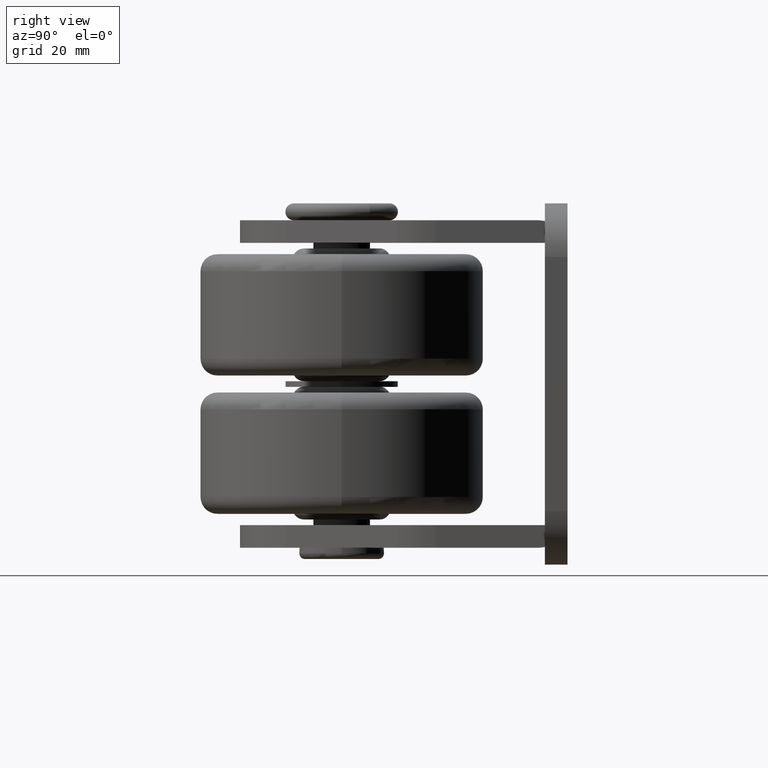
[diagram: clean part render]
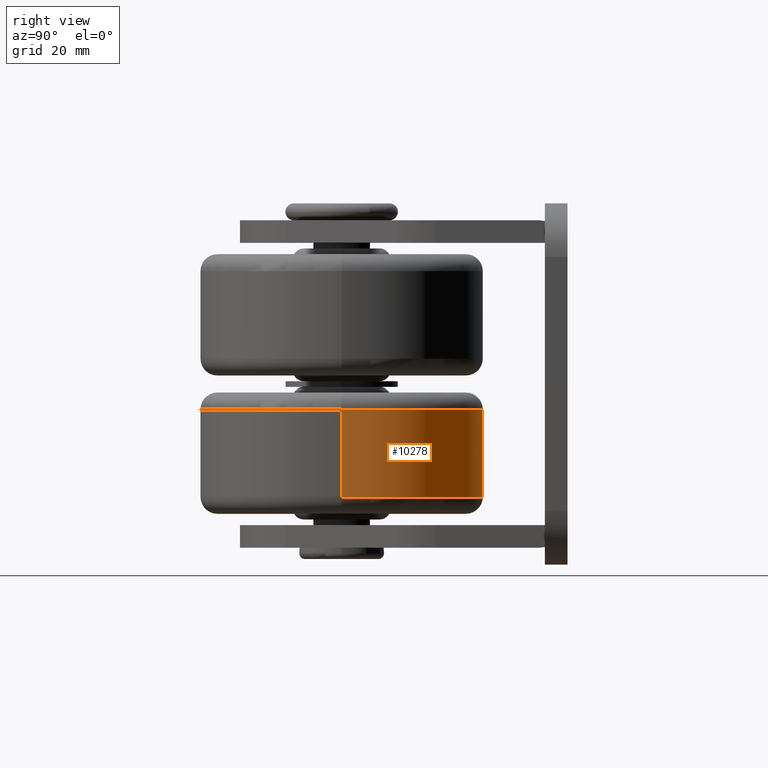
[diagram: same view with one face highlighted and labeled with its STEP entity id]
A machine part, right view. The second image highlights one B-rep face of the part: STEP entity #10278.
In plain terms, the highlighted cylindrical surface (partial cylindrical patch) has radius 25 mm, axis along (-0, 0, -1).
Its self-contained STEP definition (entity closure, byte-faithful):
#408 = CIRCLE ( 'NONE', #12837, 25.00000000000001421 ) ;
#740 = DIRECTION ( 'NONE',  ( 0.9999999975992005519, -6.929356839080121099E-05, -1.873501354054951268E-15 ) ) ;
#781 = CARTESIAN_POINT ( 'NONE',  ( -6.894579010514368278, -3.563915416284883175, 3.999999999999945377 ) ) ;
#1908 = ORIENTED_EDGE ( 'NONE', *, *, #3279, .T. ) ;
#3279 = EDGE_CURVE ( 'NONE', #22180, #8482, #6434, .T. ) ;
#3870 = DIRECTION ( 'NONE',  ( -1.900574775785575265E-15, 2.928866241592036568E-15, -1.000000000000000000 ) ) ;
#6434 = LINE ( 'NONE', #26445, #16493 ) ;
#6804 = DIRECTION ( 'NONE',  ( -0.9999999975992007739, 6.929356839163385115E-05, 1.900777722815894331E-15 ) ) ;
#8482 = VERTEX_POINT ( 'NONE', #19603 ) ;
#9383 = AXIS2_PLACEMENT_3D ( 'NONE', #781, #14885, #20801 ) ;
#10278 = ADVANCED_FACE ( 'NONE', ( #21195 ), #16911, .T. ) ;
#10323 = CARTESIAN_POINT ( 'NONE',  ( -31.89457895049438463, -3.562183077075085080, -7.558027291866200319E-15 ) ) ;
#10553 = ORIENTED_EDGE ( 'NONE', *, *, #11087, .T. ) ;
#11087 = EDGE_CURVE ( 'NONE', #12967, #22180, #408, .T. ) ;
#12837 = AXIS2_PLACEMENT_3D ( 'NONE', #23051, #25210, #6804 ) ;
#12955 = VERTEX_POINT ( 'NONE', #24673 ) ;
#12967 = VERTEX_POINT ( 'NONE', #10323 ) ;
#14091 = LINE ( 'NONE', #24286, #14104 ) ;
#14104 = VECTOR ( 'NONE', #3870, 1000.000000000000000 ) ;
#14361 = ORIENTED_EDGE ( 'NONE', *, *, #20525, .T. ) ;
#14623 = DIRECTION ( 'NONE',  ( -1.900574775785575265E-15, 2.928866241592036568E-15, -1.000000000000000000 ) ) ;
#14633 = ORIENTED_EDGE ( 'NONE', *, *, #16388, .F. ) ;
#14885 = DIRECTION ( 'NONE',  ( -1.907992876526356259E-15, 2.928866755618706364E-15, -1.000000000000000000 ) ) ;
#16388 = EDGE_CURVE ( 'NONE', #12967, #12955, #14091, .T. ) ;
#16493 = VECTOR ( 'NONE', #14623, 1000.000000000000000 ) ;
#16911 = CYLINDRICAL_SURFACE ( 'NONE', #9383, 25.00000000000000355 ) ;
#17585 = CIRCLE ( 'NONE', #26181, 25.00000000000000355 ) ;
#18744 = DIRECTION ( 'NONE',  ( 1.873298407090117518E-15, -2.928864351515112320E-15, 1.000000000000000000 ) ) ;
#19603 = CARTESIAN_POINT ( 'NONE',  ( 18.10542092946561965, -3.565647755494596449, -15.50000000000000000 ) ) ;
#20525 = EDGE_CURVE ( 'NONE', #8482, #12955, #17585, .T. ) ;
#20801 = DIRECTION ( 'NONE',  ( 0.9999999975992005519, -6.929356839080121099E-05, -1.908195823574487409E-15 ) ) ;
#21195 = FACE_OUTER_BOUND ( 'NONE', #23440, .T. ) ;
#22180 = VERTEX_POINT ( 'NONE', #23552 ) ;
#22909 = CARTESIAN_POINT ( 'NONE',  ( -6.894579010514406470, -3.563915416284824111, -15.50000000000000000 ) ) ;
#23051 = CARTESIAN_POINT ( 'NONE',  ( -6.894579010514373607, -3.563915416284874738, -5.507747036226359369E-14 ) ) ;
#23440 = EDGE_LOOP ( 'NONE', ( #14633, #10553, #1908, #14361 ) ) ;
#23552 = CARTESIAN_POINT ( 'NONE',  ( 18.10542092946564807, -3.565647755494634641, -1.025969134326609808E-13 ) ) ;
#24286 = CARTESIAN_POINT ( 'NONE',  ( -31.89457895049441305, -3.562183077075138815, 4.000000000000000000 ) ) ;
#24673 = CARTESIAN_POINT ( 'NONE',  ( -31.89457895049444147, -3.562183077075097071, -15.50000000000000000 ) ) ;
#25210 = DIRECTION ( 'NONE',  ( -1.900574775785575265E-15, 2.928866241592036568E-15, -1.000000000000000000 ) ) ;
#26181 = AXIS2_PLACEMENT_3D ( 'NONE', #22909, #18744, #740 ) ;
#26445 = CARTESIAN_POINT ( 'NONE',  ( 18.10542092946564807, -3.565647755494634641, 3.999999999999900524 ) ) ;